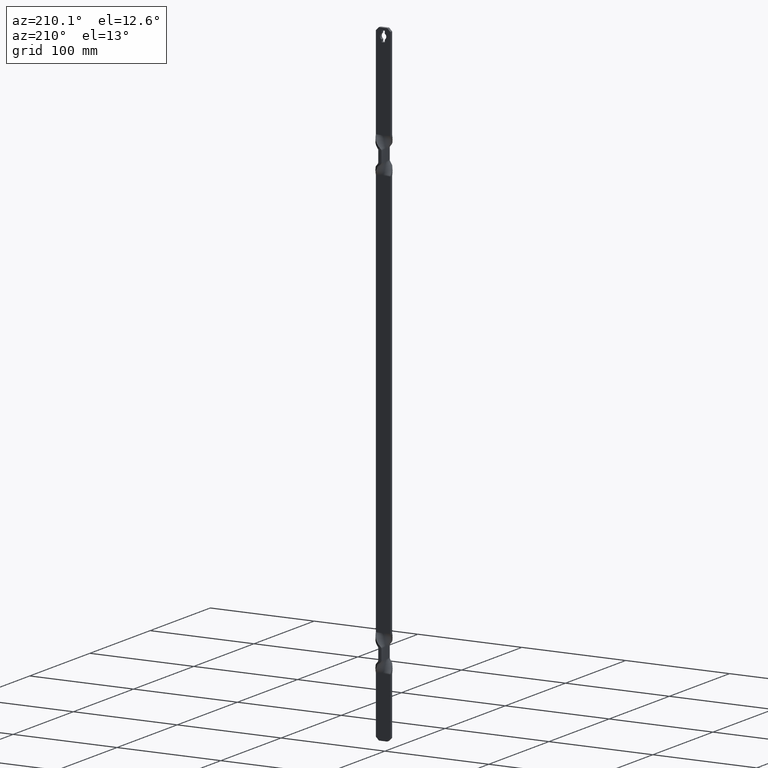
[diagram: clean part render]
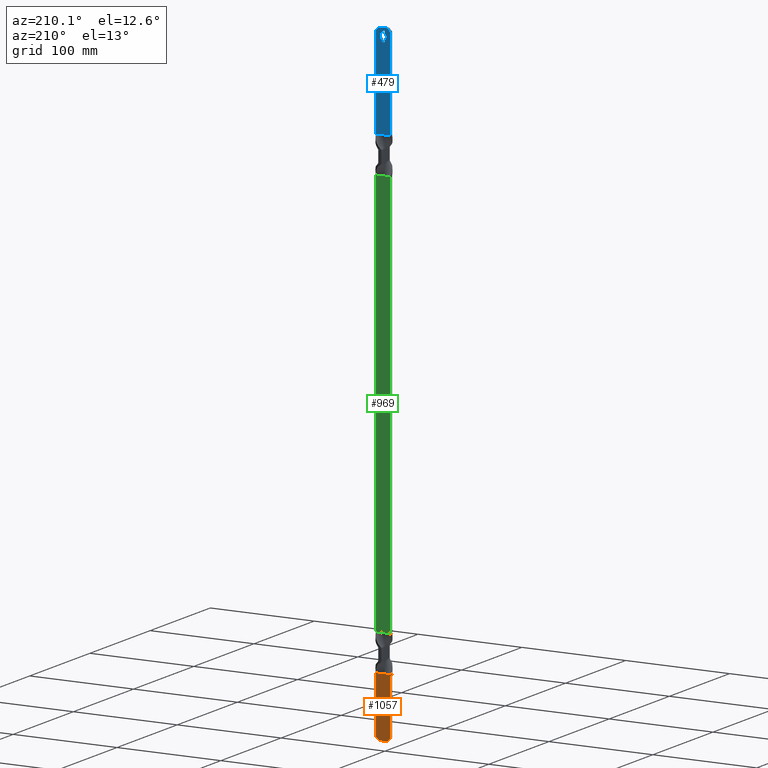
[diagram: same view with three faces highlighted in distinct colors, each labeled with its STEP entity id]
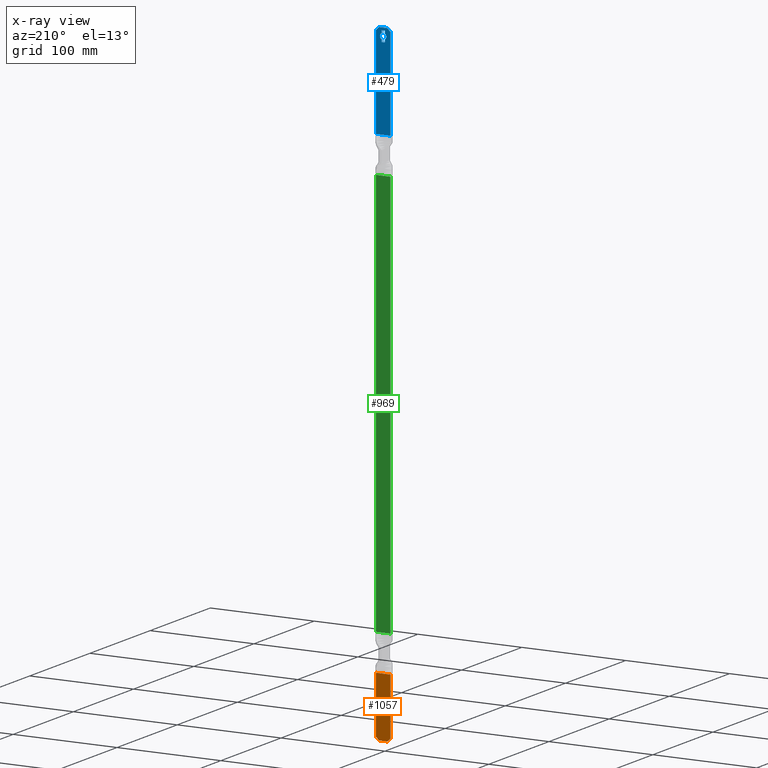
[diagram: x-ray of the same camera — body ghosted, the three highlighted faces saturated]
A machine part, auxiliary view with three faces highlighted in distinct colors.
The next image is the same camera in x-ray (body ghosted, the three faces saturated) — at least one of them is partly hidden behind the body in this view.
Their STEP definitions:

[orange] entity #1057 — the highlighted face is a freeform B-spline surface patch.
#535=CARTESIAN_POINT('',(-4.000000000000320,3.000000142492320,8.326673E-014));
#536=VERTEX_POINT('',#535);
#537=CARTESIAN_POINT('',(-7.000000000000091,3.000000142492295,2.999999999999945));
#538=VERTEX_POINT('',#537);
#539=CARTESIAN_POINT('',(-4.000000000000320,3.000000142492320,8.326673E-014));
#540=CARTESIAN_POINT('',(-7.000000000000091,3.000000142492295,2.999999999999945));
#541=QUASI_UNIFORM_CURVE('',1,(#539,#540),.UNSPECIFIED.,.F.,.U.);
#542=EDGE_CURVE('',#536,#538,#541,.T.);
#580=CARTESIAN_POINT('',(3.999999999999885,3.000000142492385,0.0));
#581=VERTEX_POINT('',#580);
#587=CARTESIAN_POINT('',(6.999999999999861,3.000000142492410,2.999999999999920));
#588=VERTEX_POINT('',#587);
#589=CARTESIAN_POINT('',(6.999999999999861,3.000000142492410,2.999999999999920));
#590=CARTESIAN_POINT('',(3.999999999999885,3.000000142492385,0.0));
#591=QUASI_UNIFORM_CURVE('',1,(#589,#590),.UNSPECIFIED.,.F.,.U.);
#592=EDGE_CURVE('',#588,#581,#591,.T.);
#991=CARTESIAN_POINT('',(3.999999999999885,3.000000142492385,0.0));
#992=CARTESIAN_POINT('',(-4.000000000000320,3.000000142492320,8.326673E-014));
#993=QUASI_UNIFORM_CURVE('',1,(#991,#992),.UNSPECIFIED.,.F.,.U.);
#994=EDGE_CURVE('',#581,#536,#993,.T.);
#1011=CARTESIAN_POINT('',(-7.000000000000110,3.000000142492295,57.500000000000000));
#1012=VERTEX_POINT('',#1011);
#1013=CARTESIAN_POINT('',(-7.000000000000091,3.000000142492295,2.999999999999945));
#1014=CARTESIAN_POINT('',(-7.000000000000110,3.000000142492295,57.500000000000000));
#1015=QUASI_UNIFORM_CURVE('',1,(#1013,#1014),.UNSPECIFIED.,.F.,.U.);
#1016=EDGE_CURVE('',#538,#1012,#1015,.T.);
#1034=CARTESIAN_POINT('',(7.699299972865173,3.000000142492410,-2.872124888553844));
#1035=CARTESIAN_POINT('',(-7.699300348374656,3.000000142492410,-2.872124888553844));
#1036=CARTESIAN_POINT('',(7.699299972865173,3.000000142492410,60.372126430824032));
#1037=CARTESIAN_POINT('',(-7.699300348374656,3.000000142492410,60.372126430824032));
#1038=B_SPLINE_SURFACE_WITH_KNOTS('',1,1,((#1034,#1036),(#1035,#1037)),.UNSPECIFIED.,.F.,.F.,.U.,(2,2),(2,2),(0.0,15.398600321239829),(0.0,63.244251319377867),.UNSPECIFIED.);
#1039=CARTESIAN_POINT('',(6.999999999999890,3.000000142492410,57.500000000000000));
#1040=VERTEX_POINT('',#1039);
#1041=CARTESIAN_POINT('',(6.999999999999861,3.000000142492410,2.999999999999920));
#1042=CARTESIAN_POINT('',(6.999999999999890,3.000000142492410,57.500000000000000));
#1043=QUASI_UNIFORM_CURVE('',1,(#1041,#1042),.UNSPECIFIED.,.F.,.U.);
#1044=EDGE_CURVE('',#588,#1040,#1043,.T.);
#1045=ORIENTED_EDGE('',*,*,#1044,.F.);
#1046=ORIENTED_EDGE('',*,*,#592,.T.);
#1047=ORIENTED_EDGE('',*,*,#994,.T.);
#1048=ORIENTED_EDGE('',*,*,#542,.T.);
#1049=ORIENTED_EDGE('',*,*,#1016,.T.);
#1050=CARTESIAN_POINT('',(6.999999999999890,3.000000142492410,57.500000000000000));
#1051=CARTESIAN_POINT('',(-7.000000000000110,3.000000142492295,57.500000000000000));
#1052=QUASI_UNIFORM_CURVE('',1,(#1050,#1051),.UNSPECIFIED.,.F.,.U.);
#1053=EDGE_CURVE('',#1040,#1012,#1052,.T.);
#1054=ORIENTED_EDGE('',*,*,#1053,.F.);
#1055=EDGE_LOOP('',(#1045,#1046,#1047,#1048,#1049,#1054));
#1056=FACE_OUTER_BOUND('',#1055,.T.);
#1057=ADVANCED_FACE('',(#1056),#1038,.T.);

[blue] entity #479 — the highlighted face is a freeform B-spline surface patch.
#58=CARTESIAN_POINT('',(6.999999999999890,3.000000142492410,606.000016932841050));
#59=VERTEX_POINT('',#58);
#65=CARTESIAN_POINT('',(3.999999999999875,3.000000142492385,609.000016932841050));
#66=VERTEX_POINT('',#65);
#67=CARTESIAN_POINT('',(3.999999999999875,3.000000142492385,609.000016932841050));
#68=CARTESIAN_POINT('',(6.999999999999890,3.000000142492410,606.000016932841050));
#69=QUASI_UNIFORM_CURVE('',1,(#67,#68),.UNSPECIFIED.,.F.,.U.);
#70=EDGE_CURVE('',#66,#59,#69,.T.);
#85=CARTESIAN_POINT('',(-7.0,3.000000142492295,606.000016932841960));
#86=VERTEX_POINT('',#85);
#87=CARTESIAN_POINT('',(-4.000000000000125,3.000000142492320,609.000016932841050));
#88=VERTEX_POINT('',#87);
#89=CARTESIAN_POINT('',(-7.0,3.000000142492295,606.000016932841960));
#90=CARTESIAN_POINT('',(-4.000000000000125,3.000000142492320,609.000016932841050));
#91=QUASI_UNIFORM_CURVE('',1,(#89,#90),.UNSPECIFIED.,.F.,.U.);
#92=EDGE_CURVE('',#86,#88,#91,.T.);
#149=CARTESIAN_POINT('',(1.550000073621035,3.000000142492365,604.126785232078080));
#150=VERTEX_POINT('',#149);
#156=CARTESIAN_POINT('',(1.550000073621005,3.000000142492355,598.873214767922040));
#157=VERTEX_POINT('',#156);
#158=CARTESIAN_POINT('',(1.550000073621118,3.000000142492355,598.873214767921810));
#159=CARTESIAN_POINT('',(3.050000144867126,3.000000142492355,599.758327183078680));
#160=CARTESIAN_POINT('',(3.050000144867126,3.000000142492355,601.500000000000000));
#161=CARTESIAN_POINT('',(3.050000144867126,3.000000142492355,603.241672816921320));
#162=CARTESIAN_POINT('',(1.550000073621142,3.000000142492355,604.126785232078300));
#170=(BOUNDED_CURVE()B_SPLINE_CURVE(2,(#158,#159,#160,#161,#162),.UNSPECIFIED.,.F.,.U.)B_SPLINE_CURVE_WITH_KNOTS((3,2,3),(0.0,0.500000000000000,1.0),.UNSPECIFIED.)CURVE()GEOMETRIC_REPRESENTATION_ITEM()RATIONAL_B_SPLINE_CURVE((1.0,0.868388369714706,1.0,0.868388369714706,1.0))REPRESENTATION_ITEM(''));
#171=EDGE_CURVE('',#157,#150,#170,.T.);
#194=CARTESIAN_POINT('',(1.550000073621005,3.000000142492355,596.499999762512970));
#195=VERTEX_POINT('',#194);
#196=CARTESIAN_POINT('',(1.550000073621005,3.000000142492355,596.499999762512970));
#197=CARTESIAN_POINT('',(1.550000073621005,3.000000142492355,598.873214767922040));
#198=QUASI_UNIFORM_CURVE('',1,(#196,#197),.UNSPECIFIED.,.F.,.U.);
#199=EDGE_CURVE('',#195,#157,#198,.T.);
#222=CARTESIAN_POINT('',(-1.550000073621090,3.000000142492355,596.499999762512970));
#223=VERTEX_POINT('',#222);
#224=CARTESIAN_POINT('',(-1.550000073621090,3.000000142492355,596.499999762512970));
#225=CARTESIAN_POINT('',(1.550000073621005,3.000000142492355,596.499999762512970));
#226=QUASI_UNIFORM_CURVE('',1,(#224,#225),.UNSPECIFIED.,.F.,.U.);
#227=EDGE_CURVE('',#223,#195,#226,.T.);
#250=CARTESIAN_POINT('',(-1.550000073620845,3.000000142492355,598.873214767922040));
#251=VERTEX_POINT('',#250);
#252=CARTESIAN_POINT('',(-1.550000073620845,3.000000142492355,598.873214767922040));
#253=CARTESIAN_POINT('',(-1.550000073621090,3.000000142492355,596.499999762512970));
#254=QUASI_UNIFORM_CURVE('',1,(#252,#253),.UNSPECIFIED.,.F.,.U.);
#255=EDGE_CURVE('',#251,#223,#254,.T.);
#297=CARTESIAN_POINT('',(-1.550000073621090,3.000000142492355,604.126785232078080));
#298=VERTEX_POINT('',#297);
#299=CARTESIAN_POINT('',(-1.550000073621155,3.000000142492355,604.126785232078190));
#300=CARTESIAN_POINT('',(-3.050000144867169,3.000000142492355,603.241672816921440));
#301=CARTESIAN_POINT('',(-3.050000144867169,3.000000142492355,601.500000000000000));
#302=CARTESIAN_POINT('',(-3.050000144867169,3.000000142492355,599.758327183078680));
#303=CARTESIAN_POINT('',(-1.550000073620973,3.000000142492355,598.873214767921810));
#311=(BOUNDED_CURVE()B_SPLINE_CURVE(2,(#299,#300,#301,#302,#303),.UNSPECIFIED.,.F.,.U.)B_SPLINE_CURVE_WITH_KNOTS((3,2,3),(0.0,0.500000000000000,1.0),.UNSPECIFIED.)CURVE()GEOMETRIC_REPRESENTATION_ITEM()RATIONAL_B_SPLINE_CURVE((1.0,0.868388369714698,1.0,0.868388369714698,1.0))REPRESENTATION_ITEM(''));
#312=EDGE_CURVE('',#298,#251,#311,.T.);
#335=CARTESIAN_POINT('',(-1.550000073621090,3.000000142492355,606.500000237487030));
#336=VERTEX_POINT('',#335);
#337=CARTESIAN_POINT('',(-1.550000073621090,3.000000142492355,606.500000237487030));
#338=CARTESIAN_POINT('',(-1.550000073621090,3.000000142492355,604.126785232078080));
#339=QUASI_UNIFORM_CURVE('',1,(#337,#338),.UNSPECIFIED.,.F.,.U.);
#340=EDGE_CURVE('',#336,#298,#339,.T.);
#363=CARTESIAN_POINT('',(1.550000073621005,3.000000142492355,606.500000237487030));
#364=VERTEX_POINT('',#363);
#365=CARTESIAN_POINT('',(1.550000073621005,3.000000142492355,606.500000237487030));
#366=CARTESIAN_POINT('',(-1.550000073621090,3.000000142492355,606.500000237487030));
#367=QUASI_UNIFORM_CURVE('',1,(#365,#366),.UNSPECIFIED.,.F.,.U.);
#368=EDGE_CURVE('',#364,#336,#367,.T.);
#389=CARTESIAN_POINT('',(1.550000073621035,3.000000142492365,604.126785232078080));
#390=CARTESIAN_POINT('',(1.550000073621005,3.000000142492355,606.500000237487030));
#391=QUASI_UNIFORM_CURVE('',1,(#389,#390),.UNSPECIFIED.,.F.,.U.);
#392=EDGE_CURVE('',#150,#364,#391,.T.);
#403=CARTESIAN_POINT('',(3.999999999999875,3.000000142492385,609.000016932841050));
#404=CARTESIAN_POINT('',(-4.000000000000125,3.000000142492320,609.000016932841050));
#405=QUASI_UNIFORM_CURVE('',1,(#403,#404),.UNSPECIFIED.,.F.,.U.);
#406=EDGE_CURVE('',#66,#88,#405,.T.);
#431=CARTESIAN_POINT('',(-7.000000000000110,3.000000142492295,517.500000000000000));
#432=VERTEX_POINT('',#431);
#433=CARTESIAN_POINT('',(-7.0,3.000000142492295,606.000016932841960));
#434=CARTESIAN_POINT('',(-7.000000000000110,3.000000142492295,517.500000000000000));
#435=QUASI_UNIFORM_CURVE('',1,(#433,#434),.UNSPECIFIED.,.F.,.U.);
#436=EDGE_CURVE('',#86,#432,#435,.T.);
#446=CARTESIAN_POINT('',(-7.699299972865394,3.000000142492410,512.929575312256360));
#447=CARTESIAN_POINT('',(7.699300348374437,3.000000142492410,512.929575312256360));
#448=CARTESIAN_POINT('',(-7.699299972865394,3.000000142492410,613.570424441032860));
#449=CARTESIAN_POINT('',(7.699300348374437,3.000000142492410,613.570424441032860));
#450=B_SPLINE_SURFACE_WITH_KNOTS('',1,1,((#446,#448),(#447,#449)),.UNSPECIFIED.,.F.,.F.,.U.,(2,2),(2,2),(0.0,15.398600321239829),(0.0,100.640849128776490),.UNSPECIFIED.);
#451=ORIENTED_EDGE('',*,*,#436,.F.);
#452=ORIENTED_EDGE('',*,*,#92,.T.);
#453=ORIENTED_EDGE('',*,*,#406,.F.);
#454=ORIENTED_EDGE('',*,*,#70,.T.);
#455=CARTESIAN_POINT('',(6.999999999999890,3.000000142492410,517.500000000000000));
#456=VERTEX_POINT('',#455);
#457=CARTESIAN_POINT('',(6.999999999999890,3.000000142492410,606.000016932841050));
#458=CARTESIAN_POINT('',(6.999999999999890,3.000000142492410,517.500000000000000));
#459=QUASI_UNIFORM_CURVE('',1,(#457,#458),.UNSPECIFIED.,.F.,.U.);
#460=EDGE_CURVE('',#59,#456,#459,.T.);
#461=ORIENTED_EDGE('',*,*,#460,.T.);
#462=CARTESIAN_POINT('',(6.999999999999890,3.000000142492410,517.500000000000000));
#463=CARTESIAN_POINT('',(-7.000000000000110,3.000000142492295,517.500000000000000));
#464=QUASI_UNIFORM_CURVE('',1,(#462,#463),.UNSPECIFIED.,.F.,.U.);
#465=EDGE_CURVE('',#456,#432,#464,.T.);
#466=ORIENTED_EDGE('',*,*,#465,.T.);
#467=EDGE_LOOP('',(#451,#452,#453,#454,#461,#466));
#468=FACE_OUTER_BOUND('',#467,.T.);
#469=ORIENTED_EDGE('',*,*,#171,.T.);
#470=ORIENTED_EDGE('',*,*,#392,.T.);
#471=ORIENTED_EDGE('',*,*,#368,.T.);
#472=ORIENTED_EDGE('',*,*,#340,.T.);
#473=ORIENTED_EDGE('',*,*,#312,.T.);
#474=ORIENTED_EDGE('',*,*,#255,.T.);
#475=ORIENTED_EDGE('',*,*,#227,.T.);
#476=ORIENTED_EDGE('',*,*,#199,.T.);
#477=EDGE_LOOP('',(#469,#470,#471,#472,#473,#474,#475,#476));
#478=FACE_BOUND('',#477,.T.);
#479=ADVANCED_FACE('',(#468,#478),#450,.F.);

[green] entity #969 — the highlighted face is a freeform B-spline surface patch.
#645=CARTESIAN_POINT('',(-7.000000000000110,3.000000142492295,482.500000000000000));
#646=VERTEX_POINT('',#645);
#739=CARTESIAN_POINT('',(6.999999999999890,3.000000142492410,482.500000000000000));
#740=VERTEX_POINT('',#739);
#741=CARTESIAN_POINT('',(-7.000000000000110,3.000000142492295,482.500000000000000));
#742=CARTESIAN_POINT('',(6.999999999999890,3.000000142492410,482.500000000000000));
#743=QUASI_UNIFORM_CURVE('',1,(#741,#742),.UNSPECIFIED.,.F.,.U.);
#744=EDGE_CURVE('',#646,#740,#743,.T.);
#931=CARTESIAN_POINT('',(6.999999999999890,3.000000142492410,92.500000000001094));
#932=VERTEX_POINT('',#931);
#938=CARTESIAN_POINT('',(6.999999999999890,3.000000142492410,482.500000000000000));
#939=CARTESIAN_POINT('',(6.999999999999890,3.000000142492410,92.500000000001094));
#940=QUASI_UNIFORM_CURVE('',1,(#938,#939),.UNSPECIFIED.,.F.,.U.);
#941=EDGE_CURVE('',#740,#932,#940,.T.);
#948=CARTESIAN_POINT('',(7.699299972865173,3.000000142492295,73.019500755896800));
#949=CARTESIAN_POINT('',(-7.699300348374655,3.000000142492295,73.019500755896800));
#950=CARTESIAN_POINT('',(7.699299972865173,3.000000142492295,501.980509704719510));
#951=CARTESIAN_POINT('',(-7.699300348374655,3.000000142492295,501.980509704719510));
#952=B_SPLINE_SURFACE_WITH_KNOTS('',1,1,((#948,#950),(#949,#951)),.UNSPECIFIED.,.F.,.F.,.U.,(2,2),(2,2),(0.0,15.398600321239829),(0.0,428.961008948822720),.UNSPECIFIED.);
#953=CARTESIAN_POINT('',(-7.000000000000110,3.000000142492295,92.500000000001094));
#954=VERTEX_POINT('',#953);
#955=CARTESIAN_POINT('',(6.999999999999890,3.000000142492410,92.500000000001094));
#956=CARTESIAN_POINT('',(-7.000000000000110,3.000000142492295,92.500000000001094));
#957=QUASI_UNIFORM_CURVE('',1,(#955,#956),.UNSPECIFIED.,.F.,.U.);
#958=EDGE_CURVE('',#932,#954,#957,.T.);
#959=ORIENTED_EDGE('',*,*,#958,.T.);
#960=CARTESIAN_POINT('',(-7.000000000000110,3.000000142492295,482.500000000000000));
#961=CARTESIAN_POINT('',(-7.000000000000110,3.000000142492295,92.500000000001094));
#962=QUASI_UNIFORM_CURVE('',1,(#960,#961),.UNSPECIFIED.,.F.,.U.);
#963=EDGE_CURVE('',#646,#954,#962,.T.);
#964=ORIENTED_EDGE('',*,*,#963,.F.);
#965=ORIENTED_EDGE('',*,*,#744,.T.);
#966=ORIENTED_EDGE('',*,*,#941,.T.);
#967=EDGE_LOOP('',(#959,#964,#965,#966));
#968=FACE_OUTER_BOUND('',#967,.T.);
#969=ADVANCED_FACE('',(#968),#952,.T.);